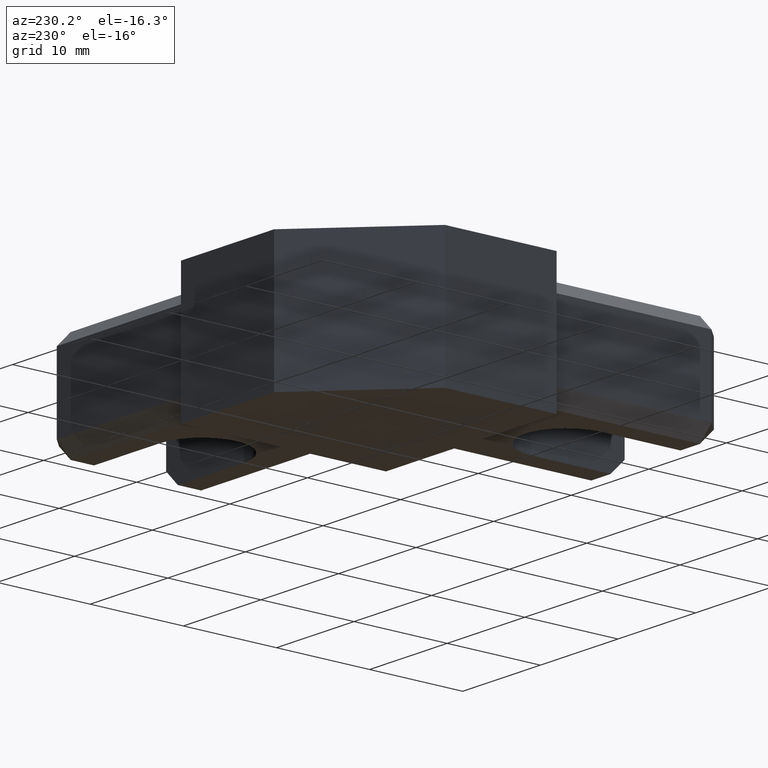
[diagram: clean part render]
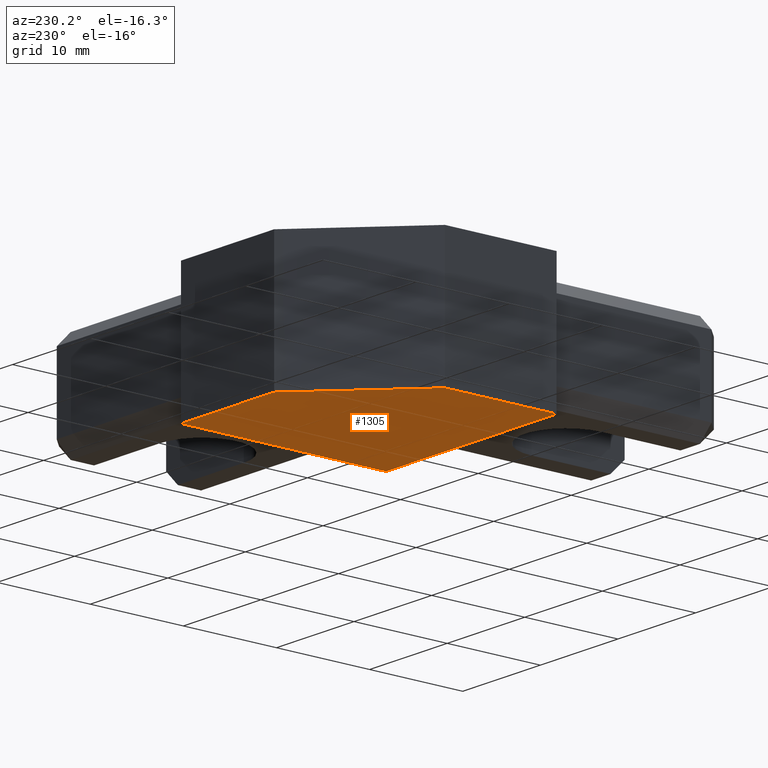
[diagram: same view with one face highlighted and labeled with its STEP entity id]
A machine part, auxiliary view. The second image highlights one B-rep face of the part: STEP entity #1305.
In plain terms, the highlighted planar face has unit normal (0, 0, 1).
Its self-contained STEP definition (entity closure, byte-faithful):
#104 = FACE_OUTER_BOUND ( 'NONE', #891, .T. ) ;
#117 = PLANE ( 'NONE',  #1509 ) ;
#121 = CARTESIAN_POINT ( 'NONE',  ( 494.9437601056900500, 384.7450700072845400, 16.70501611203464900 ) ) ;
#134 = DIRECTION ( 'NONE',  ( 1.000000000000000000, 0.0000000000000000000, 0.0000000000000000000 ) ) ;
#144 = DIRECTION ( 'NONE',  ( 0.0000000000000000000, 0.0000000000000000000, 1.000000000000000000 ) ) ;
#395 = CARTESIAN_POINT ( 'NONE',  ( 484.7937601056900100, 406.2450700072844800, 16.70501611203464900 ) ) ;
#397 = CARTESIAN_POINT ( 'NONE',  ( 494.7937601056900100, 416.2450700072844800, 16.70501611203464900 ) ) ;
#401 = CARTESIAN_POINT ( 'NONE',  ( 484.7937601056900100, 394.2450700072844800, 16.70501611203464900 ) ) ;
#413 = LINE ( 'NONE', #397, #1393 ) ;
#415 = DIRECTION ( 'NONE',  ( -1.000000000000000000, 0.0000000000000000000, 0.0000000000000000000 ) ) ;
#458 = CARTESIAN_POINT ( 'NONE',  ( 506.7937601056900100, 416.2450700072844800, 16.70501611203464900 ) ) ;
#459 = DIRECTION ( 'NONE',  ( -2.234113567545890500E-015, 1.000000000000000000, 0.0000000000000000000 ) ) ;
#460 = LINE ( 'NONE', #458, #1414 ) ;
#462 = LINE ( 'NONE', #467, #1442 ) ;
#467 = CARTESIAN_POINT ( 'NONE',  ( 484.7937601056900100, 394.2450700072844800, 16.70501611203464900 ) ) ;
#470 = DIRECTION ( 'NONE',  ( 1.000000000000000000, 0.0000000000000000000, 0.0000000000000000000 ) ) ;
#562 = LINE ( 'NONE', #569, #1459 ) ;
#566 = LINE ( 'NONE', #580, #1454 ) ;
#567 = DIRECTION ( 'NONE',  ( -2.891205793294680300E-016, -1.000000000000000000, 0.0000000000000000000 ) ) ;
#569 = CARTESIAN_POINT ( 'NONE',  ( 484.7937601056900100, 406.2450700072844800, 16.70501611203464900 ) ) ;
#570 = DIRECTION ( 'NONE',  ( -0.7071067811865474600, -0.7071067811865474600, 0.0000000000000000000 ) ) ;
#580 = CARTESIAN_POINT ( 'NONE',  ( 484.7937601056900100, 406.2450700072844800, 16.70501611203464900 ) ) ;
#595 = VERTEX_POINT ( 'NONE', #1200 ) ;
#600 = VERTEX_POINT ( 'NONE', #1180 ) ;
#607 = VERTEX_POINT ( 'NONE', #1185 ) ;
#646 = ORIENTED_EDGE ( 'NONE', *, *, #1265, .F. ) ;
#653 = ORIENTED_EDGE ( 'NONE', *, *, #1234, .F. ) ;
#685 = ORIENTED_EDGE ( 'NONE', *, *, #1266, .F. ) ;
#689 = ORIENTED_EDGE ( 'NONE', *, *, #1223, .F. ) ;
#691 = ORIENTED_EDGE ( 'NONE', *, *, #1242, .F. ) ;
#891 = EDGE_LOOP ( 'NONE', ( #653, #691, #646, #685, #689 ) ) ;
#955 = VERTEX_POINT ( 'NONE', #395 ) ;
#978 = VERTEX_POINT ( 'NONE', #401 ) ;
#1180 = CARTESIAN_POINT ( 'NONE',  ( 494.7937601056900100, 416.2450700072844800, 16.70501611203464900 ) ) ;
#1185 = CARTESIAN_POINT ( 'NONE',  ( 506.7937601056900100, 394.2450700072844800, 16.70501611203464900 ) ) ;
#1200 = CARTESIAN_POINT ( 'NONE',  ( 506.7937601056900100, 416.2450700072844800, 16.70501611203464900 ) ) ;
#1223 = EDGE_CURVE ( 'NONE', #595, #600, #413, .T. ) ;
#1234 = EDGE_CURVE ( 'NONE', #607, #595, #460, .T. ) ;
#1242 = EDGE_CURVE ( 'NONE', #978, #607, #462, .T. ) ;
#1265 = EDGE_CURVE ( 'NONE', #955, #978, #566, .T. ) ;
#1266 = EDGE_CURVE ( 'NONE', #600, #955, #562, .T. ) ;
#1305 = ADVANCED_FACE ( 'NONE', ( #104 ), #117, .F. ) ;
#1393 = VECTOR ( 'NONE', #415, 1000.000000000000000 ) ;
#1414 = VECTOR ( 'NONE', #459, 1000.000000000000000 ) ;
#1442 = VECTOR ( 'NONE', #470, 1000.000000000000000 ) ;
#1454 = VECTOR ( 'NONE', #567, 1000.000000000000000 ) ;
#1459 = VECTOR ( 'NONE', #570, 1000.000000000000100 ) ;
#1509 = AXIS2_PLACEMENT_3D ( 'NONE', #121, #144, #134 ) ;